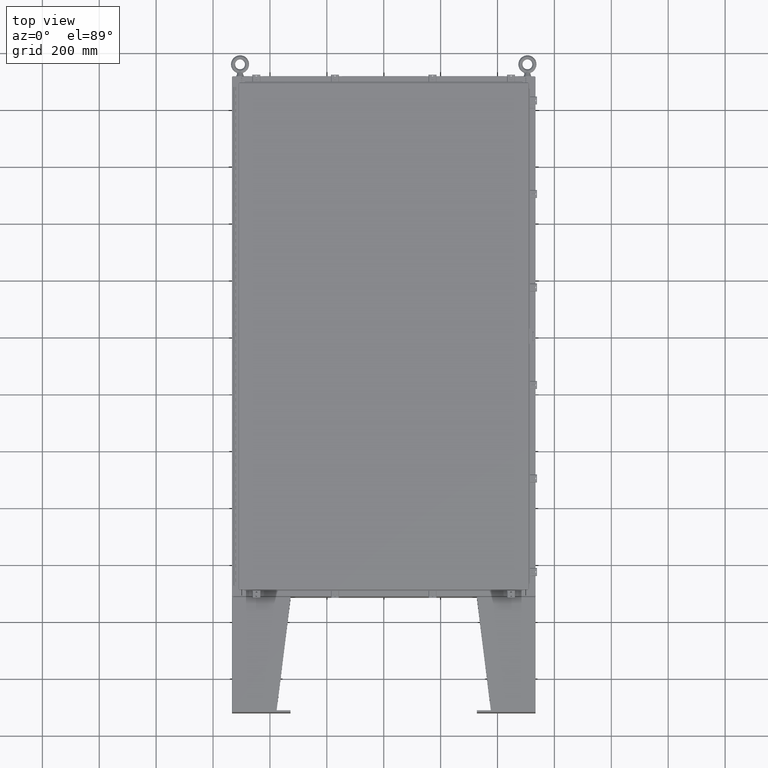
[diagram: clean part render]
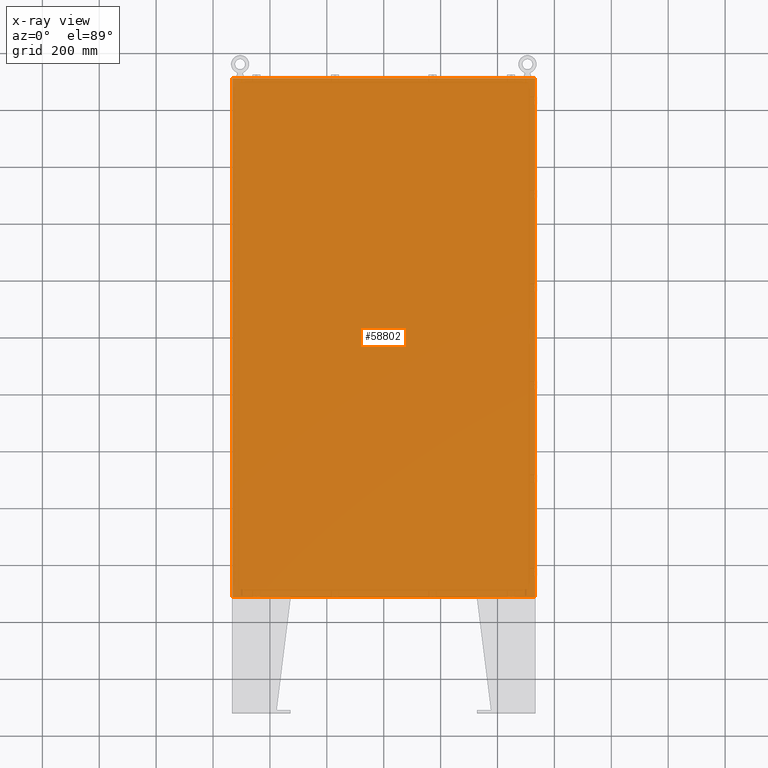
[diagram: x-ray — body ghosted, one internal face saturated and labeled with its STEP entity id]
A machine part, top view, then the same camera in x-ray: the body is ghosted and one INTERNAL B-rep face — a face not visible from any outside direction — is saturated and labeled: STEP entity #58802.
In plain terms, the highlighted planar face has unit normal (0, 0, -1).
Its self-contained STEP definition (entity closure, byte-faithful):
#1343 = LINE ( 'NONE', #66414, #66292 ) ;
#3350 = DIRECTION ( 'NONE',  ( 0.0000000000000000000, 0.0000000000000000000, -1.000000000000000000 ) ) ;
#7117 = ORIENTED_EDGE ( 'NONE', *, *, #24006, .T. ) ;
#7395 = VERTEX_POINT ( 'NONE', #12030 ) ;
#10512 = CARTESIAN_POINT ( 'NONE',  ( 20.91230000000000900, 35.92530000000000000, 4.908789363615472800E-017 ) ) ;
#12030 = CARTESIAN_POINT ( 'NONE',  ( -20.91230000000000500, -35.92530000000000000, 4.908789363615472800E-017 ) ) ;
#12065 = CARTESIAN_POINT ( 'NONE',  ( 20.91230000000000900, 35.92530000000000000, 4.908789363615472800E-017 ) ) ;
#12780 = AXIS2_PLACEMENT_3D ( 'NONE', #38918, #3350, #44862 ) ;
#13901 = CARTESIAN_POINT ( 'NONE',  ( 20.91230000000000900, -35.92529999999999300, 4.908789363615472800E-017 ) ) ;
#20022 = EDGE_CURVE ( 'NONE', #7395, #55118, #72027, .T. ) ;
#21298 = DIRECTION ( 'NONE',  ( 1.000000000000000000, 0.0000000000000000000, 0.0000000000000000000 ) ) ;
#22848 = LINE ( 'NONE', #10512, #68304 ) ;
#24006 = EDGE_CURVE ( 'NONE', #40190, #29504, #68814, .T. ) ;
#28426 = DIRECTION ( 'NONE',  ( -0.0000000000000000000, -1.000000000000000000, -0.0000000000000000000 ) ) ;
#29504 = VERTEX_POINT ( 'NONE', #73118 ) ;
#30923 = DIRECTION ( 'NONE',  ( -0.0000000000000000000, 1.000000000000000000, -0.0000000000000000000 ) ) ;
#31002 = CARTESIAN_POINT ( 'NONE',  ( -20.99999999999999600, 35.92530000000000000, 0.0000000000000000000 ) ) ;
#32030 = EDGE_CURVE ( 'NONE', #7395, #29504, #1343, .T. ) ;
#32916 = PLANE ( 'NONE',  #12780 ) ;
#38918 = CARTESIAN_POINT ( 'NONE',  ( 0.0000000000000000000, 0.0000000000000000000, 0.0000000000000000000 ) ) ;
#40190 = VERTEX_POINT ( 'NONE', #12065 ) ;
#40566 = ORIENTED_EDGE ( 'NONE', *, *, #20022, .T. ) ;
#44105 = FACE_OUTER_BOUND ( 'NONE', #54926, .T. ) ;
#44862 = DIRECTION ( 'NONE',  ( -1.000000000000000000, 0.0000000000000000000, -0.0000000000000000000 ) ) ;
#53032 = VECTOR ( 'NONE', #66483, 39.37007874015748100 ) ;
#54926 = EDGE_LOOP ( 'NONE', ( #69878, #40566, #75043, #7117 ) ) ;
#55118 = VERTEX_POINT ( 'NONE', #13901 ) ;
#56337 = VECTOR ( 'NONE', #21298, 39.37007874015748100 ) ;
#58802 = ADVANCED_FACE ( 'NONE', ( #44105 ), #32916, .F. ) ;
#66292 = VECTOR ( 'NONE', #30923, 39.37007874015748100 ) ;
#66414 = CARTESIAN_POINT ( 'NONE',  ( -20.91230000000000500, -35.92530000000000000, 4.908789363615472800E-017 ) ) ;
#66483 = DIRECTION ( 'NONE',  ( -1.000000000000000000, -0.0000000000000000000, -0.0000000000000000000 ) ) ;
#68304 = VECTOR ( 'NONE', #28426, 39.37007874015748100 ) ;
#68814 = LINE ( 'NONE', #31002, #53032 ) ;
#69878 = ORIENTED_EDGE ( 'NONE', *, *, #32030, .F. ) ;
#70959 = CARTESIAN_POINT ( 'NONE',  ( -21.00000000000000000, -35.92529999999999300, 0.0000000000000000000 ) ) ;
#72027 = LINE ( 'NONE', #70959, #56337 ) ;
#73118 = CARTESIAN_POINT ( 'NONE',  ( -20.91230000000000500, 35.92530000000000000, 4.908789363615472800E-017 ) ) ;
#73803 = EDGE_CURVE ( 'NONE', #40190, #55118, #22848, .T. ) ;
#75043 = ORIENTED_EDGE ( 'NONE', *, *, #73803, .F. ) ;